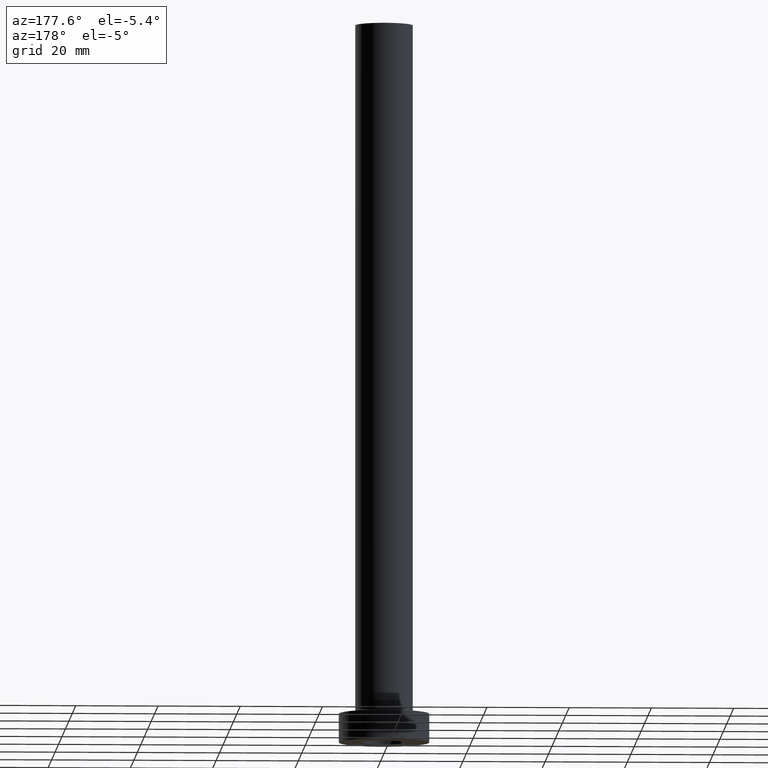
[diagram: clean part render]
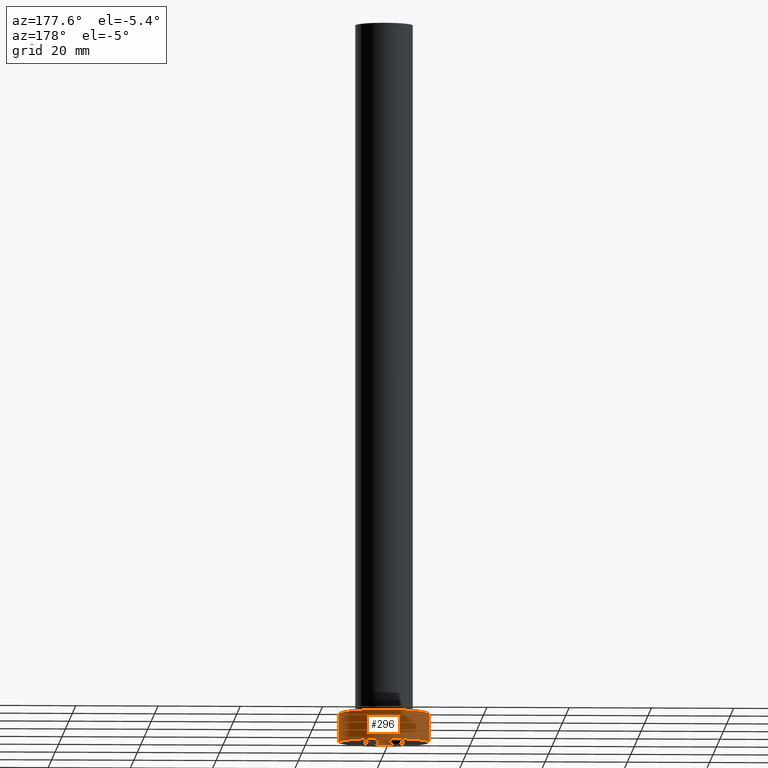
[diagram: same view with one face highlighted and labeled with its STEP entity id]
A machine part, auxiliary view. The second image highlights one B-rep face of the part: STEP entity #296.
In plain terms, the highlighted cylindrical surface (partial cylindrical patch) has radius 11 mm, axis along (-0, -0, -1).
Its self-contained STEP definition (entity closure, byte-faithful):
#6 = VECTOR ( 'NONE', #121, 1000.000000000000000 ) ;
#9 = CARTESIAN_POINT ( 'NONE',  ( 11.00000000000000000, 1.347111479062088405E-15, 7.000000000000000000 ) ) ;
#15 = ORIENTED_EDGE ( 'NONE', *, *, #419, .T. ) ;
#24 = ORIENTED_EDGE ( 'NONE', *, *, #365, .T. ) ;
#96 = FACE_OUTER_BOUND ( 'NONE', #398, .T. ) ;
#101 = CARTESIAN_POINT ( 'NONE',  ( 11.00000000000000000, 1.347111479062088405E-15, 0.000000000000000000 ) ) ;
#114 = ORIENTED_EDGE ( 'NONE', *, *, #309, .F. ) ;
#121 = DIRECTION ( 'NONE',  ( -0.000000000000000000, -0.000000000000000000, -1.000000000000000000 ) ) ;
#134 = DIRECTION ( 'NONE',  ( 1.000000000000000000, 0.000000000000000000, 0.000000000000000000 ) ) ;
#152 = AXIS2_PLACEMENT_3D ( 'NONE', #318, #275, #379 ) ;
#162 = CARTESIAN_POINT ( 'NONE',  ( -11.00000000000000000, 0.000000000000000000, 7.000000000000000000 ) ) ;
#169 = ORIENTED_EDGE ( 'NONE', *, *, #263, .F. ) ;
#189 = CYLINDRICAL_SURFACE ( 'NONE', #190, 11.00000000000000000 ) ;
#190 = AXIS2_PLACEMENT_3D ( 'NONE', #279, #350, #201 ) ;
#194 = LINE ( 'NONE', #162, #396 ) ;
#201 = DIRECTION ( 'NONE',  ( -1.000000000000000000, 0.000000000000000000, 0.000000000000000000 ) ) ;
#218 = DIRECTION ( 'NONE',  ( -0.000000000000000000, -0.000000000000000000, -1.000000000000000000 ) ) ;
#247 = CARTESIAN_POINT ( 'NONE',  ( 11.00000000000000000, 1.347111479062088405E-15, 7.000000000000000000 ) ) ;
#255 = VERTEX_POINT ( 'NONE', #260 ) ;
#260 = CARTESIAN_POINT ( 'NONE',  ( -11.00000000000000000, 0.000000000000000000, 7.000000000000000000 ) ) ;
#263 = EDGE_CURVE ( 'NONE', #255, #345, #194, .T. ) ;
#264 = VERTEX_POINT ( 'NONE', #101 ) ;
#275 = DIRECTION ( 'NONE',  ( 0.000000000000000000, 0.000000000000000000, 1.000000000000000000 ) ) ;
#279 = CARTESIAN_POINT ( 'NONE',  ( 0.000000000000000000, 0.000000000000000000, 7.000000000000000000 ) ) ;
#287 = AXIS2_PLACEMENT_3D ( 'NONE', #320, #449, #134 ) ;
#296 = ADVANCED_FACE ( 'NONE', ( #96 ), #189, .T. ) ;
#309 = EDGE_CURVE ( 'NONE', #387, #255, #355, .T. ) ;
#318 = CARTESIAN_POINT ( 'NONE',  ( 0.000000000000000000, 0.000000000000000000, 7.000000000000000000 ) ) ;
#320 = CARTESIAN_POINT ( 'NONE',  ( 0.000000000000000000, 0.000000000000000000, 0.000000000000000000 ) ) ;
#345 = VERTEX_POINT ( 'NONE', #381 ) ;
#350 = DIRECTION ( 'NONE',  ( -0.000000000000000000, -0.000000000000000000, -1.000000000000000000 ) ) ;
#355 = CIRCLE ( 'NONE', #152, 11.00000000000000000 ) ;
#365 = EDGE_CURVE ( 'NONE', #387, #264, #432, .T. ) ;
#379 = DIRECTION ( 'NONE',  ( 1.000000000000000000, 0.000000000000000000, 0.000000000000000000 ) ) ;
#381 = CARTESIAN_POINT ( 'NONE',  ( -11.00000000000000000, 0.000000000000000000, 0.000000000000000000 ) ) ;
#387 = VERTEX_POINT ( 'NONE', #247 ) ;
#396 = VECTOR ( 'NONE', #218, 1000.000000000000000 ) ;
#398 = EDGE_LOOP ( 'NONE', ( #114, #24, #15, #169 ) ) ;
#419 = EDGE_CURVE ( 'NONE', #264, #345, #441, .T. ) ;
#432 = LINE ( 'NONE', #9, #6 ) ;
#441 = CIRCLE ( 'NONE', #287, 11.00000000000000000 ) ;
#449 = DIRECTION ( 'NONE',  ( 0.000000000000000000, 0.000000000000000000, 1.000000000000000000 ) ) ;